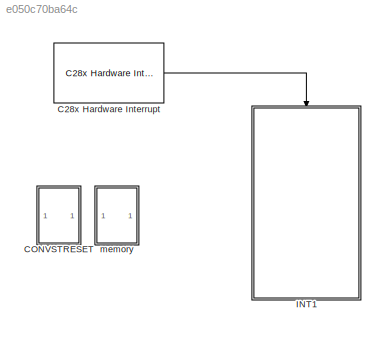
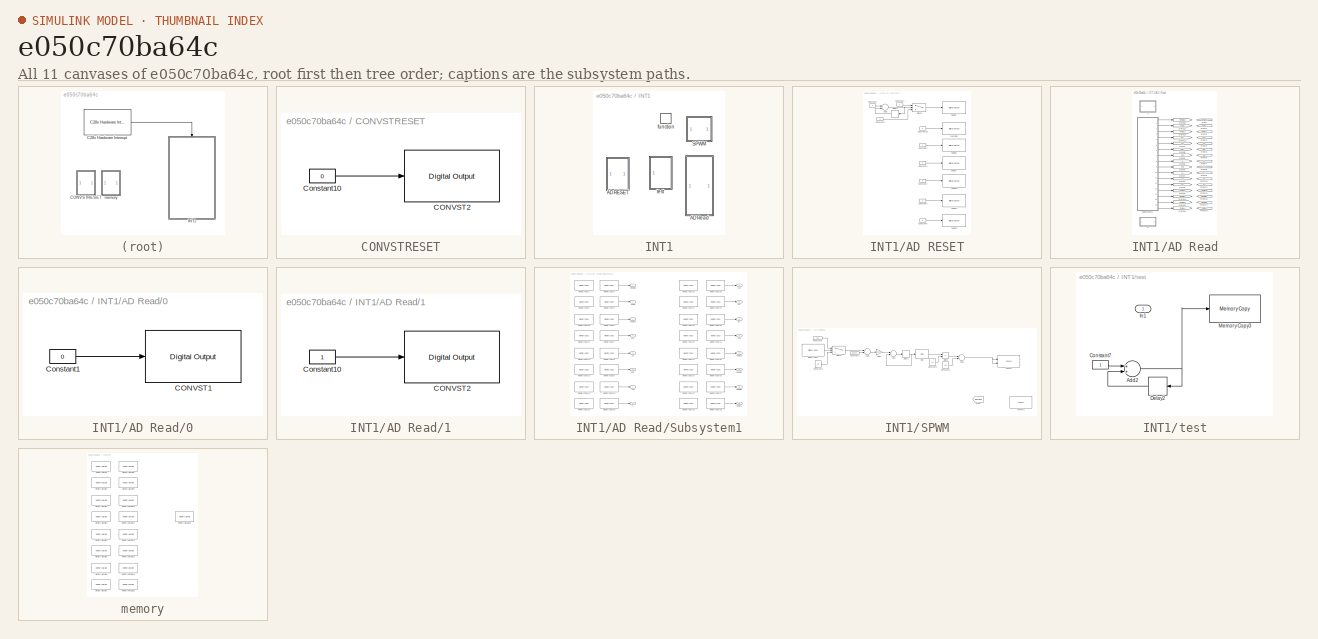
[diagram: thumbnail index - all 11 canvases of the model, root first then tree order]
MODEL slx_e050c70ba64c
KIND model
CONFIG AbsTol = auto
CONFIG EnableMultiTasking = on
CONFIG FixedStep = auto
CONFIG MaxStep = auto
CONFIG MinStep = auto
CONFIG RelTol = 1e-3
CONFIG SampleTimeConstraint = Unconstrained
CONFIG Solver = FixedStepDiscrete
CONFIG SolverName = FixedStepDiscrete
CONFIG StartTime = 0.0
CONFIG StopTime = Inf
BLOCK [Reference] C28x Hardware Interrupt  REF=c2000lib/Scheduling/C28x Hardware Interrupt
  Ports = [0, 1]
  SourceBlock = c2000lib/Scheduling/C28x Hardware Interrupt
  SourceProductBaseCode = TIC2000
  SourceProductName = Embedded Coder Support Package for Texas Instruments C2000 Processors
  SourceType = C28x Interrupt Block
BLOCK [SubSystem] CONVSTRESET
  Ports = []
  RequestExecContextInheritance = off
BLOCK [Reference] CONVSTRESET/CONVST2  REF=c2837xDlib/Digital Output
  Ports = [1]
  SourceBlock = c2837xDlib/Digital Output
  SourceProductBaseCode = TIC2000
  SourceProductName = Embedded Coder Support Package for Texas Instruments C2000 Processors
  SourceType = F2837x GPIO Digital Output
  UserDataPersistent = on
BLOCK [Constant] CONVSTRESET/Constant10
  OutDataTypeStr = boolean
  Value = 0
BLOCK [SubSystem] INT1
  Ports = [0, 0, 0, 1]
  RequestExecContextInheritance = off
BLOCK [SubSystem] INT1/AD RESET
  Ports = []
  RequestExecContextInheritance = off
BLOCK [Sum] INT1/AD RESET/Add2
  InputSameDT = off
  OutDataTypeStr = Inherit: Inherit via internal rule
  Ports = [2, 1]
  SaturateOnIntegerOverflow = off
BLOCK [Reference] INT1/AD RESET/BURST  REF=c2837xDlib/Digital Output
  Ports = [1]
  SourceBlock = c2837xDlib/Digital Output
  SourceProductBaseCode = TIC2000
  SourceProductName = Embedded Coder Support Package for Texas Instruments C2000 Processors
  SourceType = F2837x GPIO Digital Output
  UserDataPersistent = on
BLOCK [Reference] INT1/AD RESET/CHSEL0  REF=c2837xDlib/Digital Output
  Ports = [1]
  SourceBlock = c2837xDlib/Digital Output
  SourceProductBaseCode = TIC2000
  SourceProductName = Embedded Coder Support Package for Texas Instruments C2000 Processors
  SourceType = F2837x GPIO Digital Output
  UserDataPersistent = on
BLOCK [Reference] INT1/AD RESET/CHSEL1  REF=c2837xDlib/Digital Output
  Ports = [1]
  SourceBlock = c2837xDlib/Digital Output
  SourceProductBaseCode = TIC2000
  SourceProductName = Embedded Coder Support Package for Texas Instruments C2000 Processors
  SourceType = F2837x GPIO Digital Output
  UserDataPersistent = on
BLOCK [Reference] INT1/AD RESET/CHSEL2  REF=c2837xDlib/Digital Output
  Ports = [1]
  SourceBlock = c2837xDlib/Digital Output
  SourceProductBaseCode = TIC2000
  SourceProductName = Embedded Coder Support Package for Texas Instruments C2000 Processors
  SourceType = F2837x GPIO Digital Output
  UserDataPersistent = on
BLOCK [Constant] INT1/AD RESET/Constant1
  OutDataTypeStr = int16
  SampleTime = -1
BLOCK [Constant] INT1/AD RESET/Constant2
  OutDataTypeStr = boolean
  SampleTime = -1
BLOCK [Constant] INT1/AD RESET/Constant26
  OutDataTypeStr = boolean
  SampleTime = -1
  Value = 0
BLOCK [Constant] INT1/AD RESET/Constant3
  OutDataTypeStr = boolean
  Value = 0
BLOCK [Constant] INT1/AD RESET/Constant4
  OutDataTypeStr = boolean
  Value = 0
BLOCK [Constant] INT1/AD RESET/Constant5
  OutDataTypeStr = boolean
  Value = 0
BLOCK [Constant] INT1/AD RESET/Constant6
  OutDataTypeStr = boolean
  Value = 0
BLOCK [Constant] INT1/AD RESET/Constant7
  OutDataTypeStr = int16
  SampleTime = -1
BLOCK [Constant] INT1/AD RESET/Constant8
  OutDataTypeStr = boolean
  SampleTime = -1
  Value = 0
BLOCK [Delay] INT1/AD RESET/Delay2
  DelayLength = 1
  InputPortMap = u0
  Ports = [1, 1]
BLOCK [Reference] INT1/AD RESET/PAR//SER  REF=c2837xDlib/Digital Output
  Ports = [1]
  SourceBlock = c2837xDlib/Digital Output
  SourceProductBaseCode = TIC2000
  SourceProductName = Embedded Coder Support Package for Texas Instruments C2000 Processors
  SourceType = F2837x GPIO Digital Output
  UserDataPersistent = on
BLOCK [Reference] INT1/AD RESET/RESET  REF=c2837xDlib/Digital Output
  Ports = [1]
  SourceBlock = c2837xDlib/Digital Output
  SourceProductBaseCode = TIC2000
  SourceProductName = Embedded Coder Support Package for Texas Instruments C2000 Processors
  SourceType = F2837x GPIO Digital Output
  UserDataPersistent = on
BLOCK [Reference] INT1/AD RESET/SEQEN  REF=c2837xDlib/Digital Output
  Ports = [1]
  SourceBlock = c2837xDlib/Digital Output
  SourceProductBaseCode = TIC2000
  SourceProductName = Embedded Coder Support Package for Texas Instruments C2000 Processors
  SourceType = F2837x GPIO Digital Output
  UserDataPersistent = on
BLOCK [Switch] INT1/AD RESET/Switch
  InputSameDT = off
  SaturateOnIntegerOverflow = off
  Threshold = 10
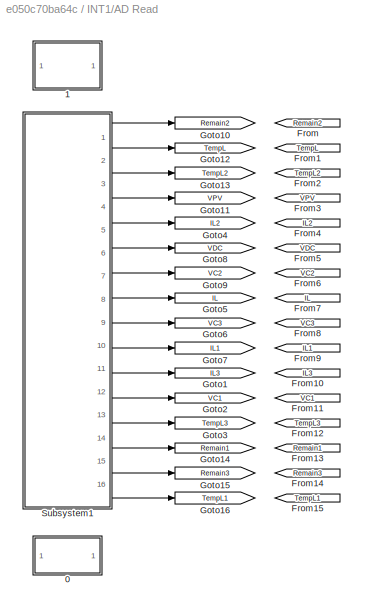
BLOCK [SubSystem] INT1/AD Read
  Ports = []
  RequestExecContextInheritance = off
BLOCK [SubSystem] INT1/AD Read/0
  Ports = []
  RequestExecContextInheritance = off
BLOCK [Reference] INT1/AD Read/0/CONVST1  REF=c2837xDlib/Digital Output
  Ports = [1]
  SourceBlock = c2837xDlib/Digital Output
  SourceProductBaseCode = TIC2000
  SourceProductName = Embedded Coder Support Package for Texas Instruments C2000 Processors
  SourceType = F2837x GPIO Digital Output
  UserDataPersistent = on
BLOCK [Constant] INT1/AD Read/0/Constant1
  OutDataTypeStr = boolean
  Value = 0
BLOCK [SubSystem] INT1/AD Read/1
  Ports = []
  RequestExecContextInheritance = off
BLOCK [Reference] INT1/AD Read/1/CONVST2  REF=c2837xDlib/Digital Output
  Ports = [1]
  SourceBlock = c2837xDlib/Digital Output
  SourceProductBaseCode = TIC2000
  SourceProductName = Embedded Coder Support Package for Texas Instruments C2000 Processors
  SourceType = F2837x GPIO Digital Output
  UserDataPersistent = on
BLOCK [Constant] INT1/AD Read/1/Constant10
  OutDataTypeStr = boolean
BLOCK [From] INT1/AD Read/From
  GotoTag = Remain2
  TagVisibility = global
BLOCK [From] INT1/AD Read/From1
  GotoTag = TempL
  TagVisibility = global
BLOCK [From] INT1/AD Read/From10
  GotoTag = IL3
  TagVisibility = global
BLOCK [From] INT1/AD Read/From11
  GotoTag = VC1
  TagVisibility = global
BLOCK [From] INT1/AD Read/From12
  GotoTag = TempL3
  TagVisibility = global
BLOCK [From] INT1/AD Read/From13
  GotoTag = Remain1
  TagVisibility = global
BLOCK [From] INT1/AD Read/From14
  GotoTag = Remain3
  TagVisibility = global
BLOCK [From] INT1/AD Read/From15
  GotoTag = TempL1
  TagVisibility = global
BLOCK [From] INT1/AD Read/From2
  GotoTag = TempL2
  TagVisibility = global
BLOCK [From] INT1/AD Read/From3
  GotoTag = VPV
  TagVisibility = global
BLOCK [From] INT1/AD Read/From4
  GotoTag = IL2
  TagVisibility = global
BLOCK [From] INT1/AD Read/From5
  GotoTag = VDC
  TagVisibility = global
BLOCK [From] INT1/AD Read/From6
  GotoTag = VC2
  TagVisibility = global
BLOCK [From] INT1/AD Read/From7
  GotoTag = IL
  TagVisibility = global
BLOCK [From] INT1/AD Read/From8
  GotoTag = VC3
  TagVisibility = global
BLOCK [From] INT1/AD Read/From9
  GotoTag = IL1
  TagVisibility = global
BLOCK [Goto] INT1/AD Read/Goto1
  GotoTag = IL3
  TagVisibility = global
BLOCK [Goto] INT1/AD Read/Goto10
  GotoTag = Remain2
  TagVisibility = global
BLOCK [Goto] INT1/AD Read/Goto11
  GotoTag = VPV
  TagVisibility = global
BLOCK [Goto] INT1/AD Read/Goto12
  GotoTag = TempL
  TagVisibility = global
BLOCK [Goto] INT1/AD Read/Goto13
  GotoTag = TempL2
  TagVisibility = global
BLOCK [Goto] INT1/AD Read/Goto14
  GotoTag = Remain1
  TagVisibility = global
BLOCK [Goto] INT1/AD Read/Goto15
  GotoTag = Remain3
  TagVisibility = global
BLOCK [Goto] INT1/AD Read/Goto16
  GotoTag = TempL1
  TagVisibility = global
BLOCK [Goto] INT1/AD Read/Goto2
  GotoTag = VC1
  TagVisibility = global
BLOCK [Goto] INT1/AD Read/Goto3
  GotoTag = TempL3
  TagVisibility = global
BLOCK [Goto] INT1/AD Read/Goto4
  GotoTag = IL2
  TagVisibility = global
BLOCK [Goto] INT1/AD Read/Goto5
  GotoTag = IL
  TagVisibility = global
BLOCK [Goto] INT1/AD Read/Goto6
  GotoTag = VC3
  TagVisibility = global
BLOCK [Goto] INT1/AD Read/Goto7
  GotoTag = IL1
  TagVisibility = global
BLOCK [Goto] INT1/AD Read/Goto8
  GotoTag = VDC
  TagVisibility = global
BLOCK [Goto] INT1/AD Read/Goto9
  GotoTag = VC2
  TagVisibility = global
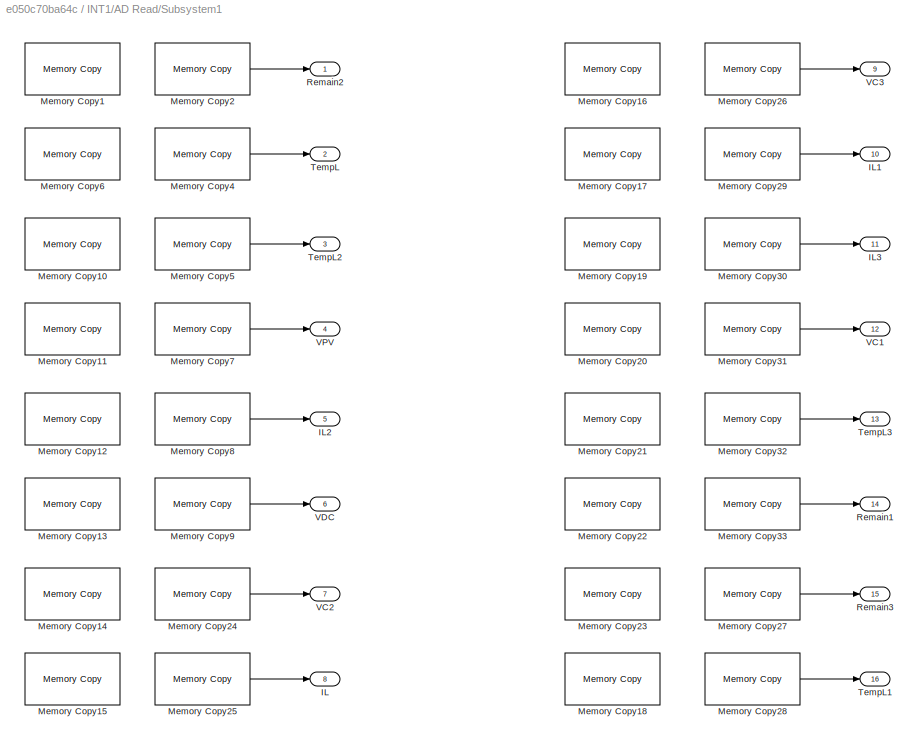
BLOCK [SubSystem] INT1/AD Read/Subsystem1
  Ports = [0, 16]
  RequestExecContextInheritance = off
BLOCK [Outport] INT1/AD Read/Subsystem1/IL
  IconDisplay = Port number
  Port = 8
BLOCK [Outport] INT1/AD Read/Subsystem1/IL1
  IconDisplay = Port number
  Port = 10
BLOCK [Outport] INT1/AD Read/Subsystem1/IL2
  IconDisplay = Port number
  Port = 5
BLOCK [Outport] INT1/AD Read/Subsystem1/IL3
  IconDisplay = Port number
  Port = 11
BLOCK [Reference] INT1/AD Read/Subsystem1/Memory Copy1  REF=idelinklib_common/Memory Copy
  Ports = []
  SourceBlock = idelinklib_common/Memory Copy
  SourceType = Memory Copy
BLOCK [Reference] INT1/AD Read/Subsystem1/Memory Copy10  REF=idelinklib_common/Memory Copy
  Ports = []
  SourceBlock = idelinklib_common/Memory Copy
  SourceType = Memory Copy
BLOCK [Reference] INT1/AD Read/Subsystem1/Memory Copy11  REF=idelinklib_common/Memory Copy
  Ports = []
  SourceBlock = idelinklib_common/Memory Copy
  SourceType = Memory Copy
BLOCK [Reference] INT1/AD Read/Subsystem1/Memory Copy12  REF=idelinklib_common/Memory Copy
  Ports = []
  SourceBlock = idelinklib_common/Memory Copy
  SourceType = Memory Copy
BLOCK [Reference] INT1/AD Read/Subsystem1/Memory Copy13  REF=idelinklib_common/Memory Copy
  Ports = []
  SourceBlock = idelinklib_common/Memory Copy
  SourceType = Memory Copy
BLOCK [Reference] INT1/AD Read/Subsystem1/Memory Copy14  REF=idelinklib_common/Memory Copy
  Ports = []
  SourceBlock = idelinklib_common/Memory Copy
  SourceType = Memory Copy
BLOCK [Reference] INT1/AD Read/Subsystem1/Memory Copy15  REF=idelinklib_common/Memory Copy
  Ports = []
  SourceBlock = idelinklib_common/Memory Copy
  SourceType = Memory Copy
BLOCK [Reference] INT1/AD Read/Subsystem1/Memory Copy16  REF=idelinklib_common/Memory Copy
  Ports = []
  SourceBlock = idelinklib_common/Memory Copy
  SourceType = Memory Copy
BLOCK [Reference] INT1/AD Read/Subsystem1/Memory Copy17  REF=idelinklib_common/Memory Copy
  Ports = []
  SourceBlock = idelinklib_common/Memory Copy
  SourceType = Memory Copy
BLOCK [Reference] INT1/AD Read/Subsystem1/Memory Copy18  REF=idelinklib_common/Memory Copy
  Ports = []
  SourceBlock = idelinklib_common/Memory Copy
  SourceType = Memory Copy
BLOCK [Reference] INT1/AD Read/Subsystem1/Memory Copy19  REF=idelinklib_common/Memory Copy
  Ports = []
  SourceBlock = idelinklib_common/Memory Copy
  SourceType = Memory Copy
BLOCK [Reference] INT1/AD Read/Subsystem1/Memory Copy2  REF=idelinklib_common/Memory Copy
  Ports = [0, 1]
  SourceBlock = idelinklib_common/Memory Copy
  SourceType = Memory Copy
BLOCK [Reference] INT1/AD Read/Subsystem1/Memory Copy20  REF=idelinklib_common/Memory Copy
  Ports = []
  SourceBlock = idelinklib_common/Memory Copy
  SourceType = Memory Copy
BLOCK [Reference] INT1/AD Read/Subsystem1/Memory Copy21  REF=idelinklib_common/Memory Copy
  Ports = []
  SourceBlock = idelinklib_common/Memory Copy
  SourceType = Memory Copy
BLOCK [Reference] INT1/AD Read/Subsystem1/Memory Copy22  REF=idelinklib_common/Memory Copy
  Ports = []
  SourceBlock = idelinklib_common/Memory Copy
  SourceType = Memory Copy
BLOCK [Reference] INT1/AD Read/Subsystem1/Memory Copy23  REF=idelinklib_common/Memory Copy
  Ports = []
  SourceBlock = idelinklib_common/Memory Copy
  SourceType = Memory Copy
BLOCK [Reference] INT1/AD Read/Subsystem1/Memory Copy24  REF=idelinklib_common/Memory Copy
  Ports = [0, 1]
  SourceBlock = idelinklib_common/Memory Copy
  SourceType = Memory Copy
BLOCK [Reference] INT1/AD Read/Subsystem1/Memory Copy25  REF=idelinklib_common/Memory Copy
  Ports = [0, 1]
  SourceBlock = idelinklib_common/Memory Copy
  SourceType = Memory Copy
BLOCK [Reference] INT1/AD Read/Subsystem1/Memory Copy26  REF=idelinklib_common/Memory Copy
  Ports = [0, 1]
  SourceBlock = idelinklib_common/Memory Copy
  SourceType = Memory Copy
BLOCK [Reference] INT1/AD Read/Subsystem1/Memory Copy27  REF=idelinklib_common/Memory Copy
  Ports = [0, 1]
  SourceBlock = idelinklib_common/Memory Copy
  SourceType = Memory Copy
BLOCK [Reference] INT1/AD Read/Subsystem1/Memory Copy28  REF=idelinklib_common/Memory Copy
  Ports = [0, 1]
  SourceBlock = idelinklib_common/Memory Copy
  SourceType = Memory Copy
BLOCK [Reference] INT1/AD Read/Subsystem1/Memory Copy29  REF=idelinklib_common/Memory Copy
  Ports = [0, 1]
  SourceBlock = idelinklib_common/Memory Copy
  SourceType = Memory Copy
BLOCK [Reference] INT1/AD Read/Subsystem1/Memory Copy30  REF=idelinklib_common/Memory Copy
  Ports = [0, 1]
  SourceBlock = idelinklib_common/Memory Copy
  SourceType = Memory Copy
BLOCK [Reference] INT1/AD Read/Subsystem1/Memory Copy31  REF=idelinklib_common/Memory Copy
  Ports = [0, 1]
  SourceBlock = idelinklib_common/Memory Copy
  SourceType = Memory Copy
BLOCK [Reference] INT1/AD Read/Subsystem1/Memory Copy32  REF=idelinklib_common/Memory Copy
  Ports = [0, 1]
  SourceBlock = idelinklib_common/Memory Copy
  SourceType = Memory Copy
BLOCK [Reference] INT1/AD Read/Subsystem1/Memory Copy33  REF=idelinklib_common/Memory Copy
  Ports = [0, 1]
  SourceBlock = idelinklib_common/Memory Copy
  SourceType = Memory Copy
BLOCK [Reference] INT1/AD Read/Subsystem1/Memory Copy4  REF=idelinklib_common/Memory Copy
  Ports = [0, 1]
  SourceBlock = idelinklib_common/Memory Copy
  SourceType = Memory Copy
BLOCK [Reference] INT1/AD Read/Subsystem1/Memory Copy5  REF=idelinklib_common/Memory Copy
  Ports = [0, 1]
  SourceBlock = idelinklib_common/Memory Copy
  SourceType = Memory Copy
BLOCK [Reference] INT1/AD Read/Subsystem1/Memory Copy6  REF=idelinklib_common/Memory Copy
  Ports = []
  SourceBlock = idelinklib_common/Memory Copy
  SourceType = Memory Copy
BLOCK [Reference] INT1/AD Read/Subsystem1/Memory Copy7  REF=idelinklib_common/Memory Copy
  Ports = [0, 1]
  SourceBlock = idelinklib_common/Memory Copy
  SourceType = Memory Copy
BLOCK [Reference] INT1/AD Read/Subsystem1/Memory Copy8  REF=idelinklib_common/Memory Copy
  Ports = [0, 1]
  SourceBlock = idelinklib_common/Memory Copy
  SourceType = Memory Copy
BLOCK [Reference] INT1/AD Read/Subsystem1/Memory Copy9  REF=idelinklib_common/Memory Copy
  Ports = [0, 1]
  SourceBlock = idelinklib_common/Memory Copy
  SourceType = Memory Copy
BLOCK [Outport] INT1/AD Read/Subsystem1/Remain1
  IconDisplay = Port number
  Port = 14
BLOCK [Outport] INT1/AD Read/Subsystem1/Remain2
  IconDisplay = Port number
BLOCK [Outport] INT1/AD Read/Subsystem1/Remain3
  IconDisplay = Port number
  Port = 15
BLOCK [Outport] INT1/AD Read/Subsystem1/TempL
  IconDisplay = Port number
  Port = 2
BLOCK [Outport] INT1/AD Read/Subsystem1/TempL1
  IconDisplay = Port number
  Port = 16
BLOCK [Outport] INT1/AD Read/Subsystem1/TempL2
  IconDisplay = Port number
  Port = 3
BLOCK [Outport] INT1/AD Read/Subsystem1/TempL3
  IconDisplay = Port number
  Port = 13
BLOCK [Outport] INT1/AD Read/Subsystem1/VC1
  IconDisplay = Port number
  Port = 12
BLOCK [Outport] INT1/AD Read/Subsystem1/VC2
  IconDisplay = Port number
  Port = 7
BLOCK [Outport] INT1/AD Read/Subsystem1/VC3
  IconDisplay = Port number
  Port = 9
BLOCK [Outport] INT1/AD Read/Subsystem1/VDC
  IconDisplay = Port number
  Port = 6
BLOCK [Outport] INT1/AD Read/Subsystem1/VPV
  IconDisplay = Port number
  Port = 4
BLOCK [SubSystem] INT1/SPWM
  Ports = []
  RequestExecContextInheritance = off
BLOCK [Sum] INT1/SPWM/Add1
  InputSameDT = off
  OutDataTypeStr = Inherit: Inherit via internal rule
  Ports = [2, 1]
  SaturateOnIntegerOverflow = off
BLOCK [Sum] INT1/SPWM/Add2
  InputSameDT = off
  OutDataTypeStr = Inherit: Inherit via internal rule
  Ports = [2, 1]
  SaturateOnIntegerOverflow = off
BLOCK [Sum] INT1/SPWM/Add3
  InputSameDT = off
  Inputs = +-
  OutDataTypeStr = Inherit: Inherit via internal rule
  Ports = [2, 1]
  SaturateOnIntegerOverflow = off
BLOCK [Constant] INT1/SPWM/Constant1
  Value = 0.0471
  VectorParams1D = off
BLOCK [Constant] INT1/SPWM/Constant2
  Value = 40
  VectorParams1D = off
BLOCK [Constant] INT1/SPWM/Constant3
  Value = 50
  VectorParams1D = off
BLOCK [Constant] INT1/SPWM/Constant5
  Value = 0.1
  VectorParams1D = off
BLOCK [Constant] INT1/SPWM/Constant6
  Value = 50
  VectorParams1D = off
BLOCK [Delay] INT1/SPWM/Delay1
  DelayLength = 1
  InputPortMap = u0
  Ports = [1, 1]
BLOCK [Reference] INT1/SPWM/Digital Input  REF=c2837xDlib/Digital Input
  Ports = [0, 1]
  SourceBlock = c2837xDlib/Digital Input
  SourceProductBaseCode = TIC2000
  SourceProductName = Embedded Coder Support Package for Texas Instruments C2000 Processors
  SourceType = F2837x GPIO Digital Input
  UserDataPersistent = on
BLOCK [Product] INT1/SPWM/Divide
  InputSameDT = off
  Inputs = **
  OutDataTypeStr = Inherit: Inherit via internal rule
  Ports = [2, 1]
  RndMeth = Floor
  SaturateOnIntegerOverflow = off
BLOCK [From] INT1/SPWM/From
  GotoTag = Remain2
  TagVisibility = global
BLOCK [Gain] INT1/SPWM/Gain1
  Gain = 1/3316.4
  OutDataTypeStr = Inherit: Inherit via internal rule
  ParamDataTypeStr = Inherit: Inherit via internal rule
  SaturateOnIntegerOverflow = off
BLOCK [Reference] INT1/SPWM/Sine  REF=simulink/Lookup
Tables/Sine
  Ports = [1, 1]
  SourceBlock = simulink/Lookup\nTables/Sine
  SourceProductBaseCode = SL
  SourceProductName = Simulink
  SourceType = Sine and Cosine
BLOCK [Switch] INT1/SPWM/Switch
  InputSameDT = off
  SaturateOnIntegerOverflow = off
  Threshold = 1
BLOCK [Reference] INT1/SPWM/ePWM  REF=c2802xlib/ePWM
  Ports = [2]
  SourceBlock = c2802xlib/ePWM
  SourceProductBaseCode = TIC2000
  SourceProductName = Embedded Coder Support Package for Texas Instruments C2000 Processors
  SourceType = C2802x/03x/05x/06x/M3x/37x/07x/004x ePWM
  UserDataPersistent = on
BLOCK [Reference] INT1/SPWM/ePWM1  REF=c2802xlib/ePWM
  Ports = [2]
  SourceBlock = c2802xlib/ePWM
  SourceProductBaseCode = TIC2000
  SourceProductName = Embedded Coder Support Package for Texas Instruments C2000 Processors
  SourceType = C2802x/03x/05x/06x/M3x/37x/07x/004x ePWM
  UserDataPersistent = on
BLOCK [TriggerPort] INT1/function
  Ports = []
  SampleTime = 1e-5
  StatesWhenEnabling = held
  TriggerType = function-call
  VariantControl = (inherit)
BLOCK [SubSystem] INT1/test
  Ports = [1]
  RequestExecContextInheritance = off
BLOCK [Sum] INT1/test/Add2
  InputSameDT = off
  OutDataTypeStr = Inherit: Inherit via internal rule
  Ports = [2, 1]
  SaturateOnIntegerOverflow = off
BLOCK [Constant] INT1/test/Constant7
  OutDataTypeStr = int16
  SampleTime = -1
BLOCK [Delay] INT1/test/Delay2
  DelayLength = 2500
  InputPortMap = u0
  Ports = [1, 1]
BLOCK [Inport] INT1/test/In1
  IconDisplay = Port number
BLOCK [Reference] INT1/test/Memory Copy3  REF=idelinklib_common/Memory Copy
  Ports = [1]
  SourceBlock = idelinklib_common/Memory Copy
  SourceType = Memory Copy
BLOCK [SubSystem] memory
  Ports = []
  RequestExecContextInheritance = off
BLOCK [Reference] memory/Memory Allocate  REF=idelinklib_common/Memory Allocate
  Ports = []
  SourceBlock = idelinklib_common/Memory Allocate
  SourceType = Memory Allocate
BLOCK [Reference] memory/Memory Allocate1  REF=idelinklib_common/Memory Allocate
  Ports = []
  SourceBlock = idelinklib_common/Memory Allocate
  SourceType = Memory Allocate
BLOCK [Reference] memory/Memory Allocate10  REF=idelinklib_common/Memory Allocate
  Ports = []
  SourceBlock = idelinklib_common/Memory Allocate
  SourceType = Memory Allocate
BLOCK [Reference] memory/Memory Allocate11  REF=idelinklib_common/Memory Allocate
  Ports = []
  SourceBlock = idelinklib_common/Memory Allocate
  SourceType = Memory Allocate
BLOCK [Reference] memory/Memory Allocate12  REF=idelinklib_common/Memory Allocate
  Ports = []
  SourceBlock = idelinklib_common/Memory Allocate
  SourceType = Memory Allocate
BLOCK [Reference] memory/Memory Allocate13  REF=idelinklib_common/Memory Allocate
  Ports = []
  SourceBlock = idelinklib_common/Memory Allocate
  SourceType = Memory Allocate
BLOCK [Reference] memory/Memory Allocate14  REF=idelinklib_common/Memory Allocate
  Ports = []
  SourceBlock = idelinklib_common/Memory Allocate
  SourceType = Memory Allocate
BLOCK [Reference] memory/Memory Allocate15  REF=idelinklib_common/Memory Allocate
  Ports = []
  SourceBlock = idelinklib_common/Memory Allocate
  SourceType = Memory Allocate
BLOCK [Reference] memory/Memory Allocate16  REF=idelinklib_common/Memory Allocate
  Ports = []
  SourceBlock = idelinklib_common/Memory Allocate
  SourceType = Memory Allocate
BLOCK [Reference] memory/Memory Allocate2  REF=idelinklib_common/Memory Allocate
  Ports = []
  SourceBlock = idelinklib_common/Memory Allocate
  SourceType = Memory Allocate
BLOCK [Reference] memory/Memory Allocate3  REF=idelinklib_common/Memory Allocate
  Ports = []
  SourceBlock = idelinklib_common/Memory Allocate
  SourceType = Memory Allocate
BLOCK [Reference] memory/Memory Allocate4  REF=idelinklib_common/Memory Allocate
  Ports = []
  SourceBlock = idelinklib_common/Memory Allocate
  SourceType = Memory Allocate
BLOCK [Reference] memory/Memory Allocate5  REF=idelinklib_common/Memory Allocate
  Ports = []
  SourceBlock = idelinklib_common/Memory Allocate
  SourceType = Memory Allocate
BLOCK [Reference] memory/Memory Allocate6  REF=idelinklib_common/Memory Allocate
  Ports = []
  SourceBlock = idelinklib_common/Memory Allocate
  SourceType = Memory Allocate
BLOCK [Reference] memory/Memory Allocate7  REF=idelinklib_common/Memory Allocate
  Ports = []
  SourceBlock = idelinklib_common/Memory Allocate
  SourceType = Memory Allocate
BLOCK [Reference] memory/Memory Allocate8  REF=idelinklib_common/Memory Allocate
  Ports = []
  SourceBlock = idelinklib_common/Memory Allocate
  SourceType = Memory Allocate
BLOCK [Reference] memory/Memory Allocate9  REF=idelinklib_common/Memory Allocate
  Ports = []
  SourceBlock = idelinklib_common/Memory Allocate
  SourceType = Memory Allocate
LINE C28x Hardware Interrupt:1 -> INT1:trigger
LINE CONVSTRESET/Constant10:1 -> CONVSTRESET/CONVST2:1
NET INT1/AD RESET/Add2:1 -> INT1/AD RESET/Delay2:1, INT1/AD RESET/Switch:2
LINE INT1/AD RESET/Constant1:1 -> INT1/AD RESET/Switch:1
LINE INT1/AD RESET/Constant26:1 -> INT1/AD RESET/PAR//SER:1
LINE INT1/AD RESET/Constant2:1 -> INT1/AD RESET/SEQEN:1
LINE INT1/AD RESET/Constant3:1 -> INT1/AD RESET/BURST:1
LINE INT1/AD RESET/Constant4:1 -> INT1/AD RESET/CHSEL0:1
LINE INT1/AD RESET/Constant5:1 -> INT1/AD RESET/CHSEL1:1
LINE INT1/AD RESET/Constant6:1 -> INT1/AD RESET/CHSEL2:1
LINE INT1/AD RESET/Constant7:1 -> INT1/AD RESET/Add2:1
LINE INT1/AD RESET/Constant8:1 -> INT1/AD RESET/Switch:3
LINE INT1/AD RESET/Delay2:1 -> INT1/AD RESET/Add2:2
LINE INT1/AD RESET/Switch:1 -> INT1/AD RESET/RESET:1
LINE INT1/AD Read/0/Constant1:1 -> INT1/AD Read/0/CONVST1:1
LINE INT1/AD Read/1/Constant10:1 -> INT1/AD Read/1/CONVST2:1
LINE INT1/AD Read/Subsystem1/Memory Copy24:1 -> INT1/AD Read/Subsystem1/VC2:1
LINE INT1/AD Read/Subsystem1/Memory Copy25:1 -> INT1/AD Read/Subsystem1/IL:1
LINE INT1/AD Read/Subsystem1/Memory Copy26:1 -> INT1/AD Read/Subsystem1/VC3:1
LINE INT1/AD Read/Subsystem1/Memory Copy27:1 -> INT1/AD Read/Subsystem1/Remain3:1
LINE INT1/AD Read/Subsystem1/Memory Copy28:1 -> INT1/AD Read/Subsystem1/TempL1:1
LINE INT1/AD Read/Subsystem1/Memory Copy29:1 -> INT1/AD Read/Subsystem1/IL1:1
LINE INT1/AD Read/Subsystem1/Memory Copy2:1 -> INT1/AD Read/Subsystem1/Remain2:1
LINE INT1/AD Read/Subsystem1/Memory Copy30:1 -> INT1/AD Read/Subsystem1/IL3:1
LINE INT1/AD Read/Subsystem1/Memory Copy31:1 -> INT1/AD Read/Subsystem1/VC1:1
LINE INT1/AD Read/Subsystem1/Memory Copy32:1 -> INT1/AD Read/Subsystem1/TempL3:1
LINE INT1/AD Read/Subsystem1/Memory Copy33:1 -> INT1/AD Read/Subsystem1/Remain1:1
LINE INT1/AD Read/Subsystem1/Memory Copy4:1 -> INT1/AD Read/Subsystem1/TempL:1
LINE INT1/AD Read/Subsystem1/Memory Copy5:1 -> INT1/AD Read/Subsystem1/TempL2:1
LINE INT1/AD Read/Subsystem1/Memory Copy7:1 -> INT1/AD Read/Subsystem1/VPV:1
LINE INT1/AD Read/Subsystem1/Memory Copy8:1 -> INT1/AD Read/Subsystem1/IL2:1
LINE INT1/AD Read/Subsystem1/Memory Copy9:1 -> INT1/AD Read/Subsystem1/VDC:1
LINE INT1/AD Read/Subsystem1:1 -> INT1/AD Read/Goto10:1
LINE INT1/AD Read/Subsystem1:10 -> INT1/AD Read/Goto7:1
LINE INT1/AD Read/Subsystem1:11 -> INT1/AD Read/Goto1:1
LINE INT1/AD Read/Subsystem1:12 -> INT1/AD Read/Goto2:1
LINE INT1/AD Read/Subsystem1:13 -> INT1/AD Read/Goto3:1
LINE INT1/AD Read/Subsystem1:14 -> INT1/AD Read/Goto14:1
LINE INT1/AD Read/Subsystem1:15 -> INT1/AD Read/Goto15:1
LINE INT1/AD Read/Subsystem1:16 -> INT1/AD Read/Goto16:1
LINE INT1/AD Read/Subsystem1:2 -> INT1/AD Read/Goto12:1
LINE INT1/AD Read/Subsystem1:3 -> INT1/AD Read/Goto13:1
LINE INT1/AD Read/Subsystem1:4 -> INT1/AD Read/Goto11:1
LINE INT1/AD Read/Subsystem1:5 -> INT1/AD Read/Goto4:1
LINE INT1/AD Read/Subsystem1:6 -> INT1/AD Read/Goto8:1
LINE INT1/AD Read/Subsystem1:7 -> INT1/AD Read/Goto9:1
LINE INT1/AD Read/Subsystem1:8 -> INT1/AD Read/Goto5:1
LINE INT1/AD Read/Subsystem1:9 -> INT1/AD Read/Goto6:1
LINE INT1/SPWM/Add1:1 -> INT1/SPWM/Delay1:1
NET INT1/SPWM/Add2:1 -> INT1/SPWM/ePWM:1, INT1/SPWM/ePWM:2
LINE INT1/SPWM/Add3:1 -> INT1/SPWM/Gain1:1
LINE INT1/SPWM/Constant1:1 -> INT1/SPWM/Add3:2
LINE INT1/SPWM/Constant2:1 -> INT1/SPWM/Divide:2
LINE INT1/SPWM/Constant3:1 -> INT1/SPWM/Add2:2
LINE INT1/SPWM/Constant5:1 -> INT1/SPWM/Switch:3
LINE INT1/SPWM/Constant6:1 -> INT1/SPWM/Switch:1
NET INT1/SPWM/Delay1:1 -> INT1/SPWM/Add1:2, INT1/SPWM/Sine:1
LINE INT1/SPWM/Digital Input:1 -> INT1/SPWM/Switch:2
LINE INT1/SPWM/Divide:1 -> INT1/SPWM/Add2:1
LINE INT1/SPWM/Gain1:1 -> INT1/SPWM/Add1:1
LINE INT1/SPWM/Sine:1 -> INT1/SPWM/Divide:1
LINE INT1/SPWM/Switch:1 -> INT1/SPWM/Add3:1
NET INT1/test/Add2:1 -> INT1/test/Delay2:1, INT1/test/Memory Copy3:1
LINE INT1/test/Constant7:1 -> INT1/test/Add2:1
LINE INT1/test/Delay2:1 -> INT1/test/Add2:2
note: NET lines group one-source signal fan-out (src -> all destinations, sorted); 1:1 wires keep LINE
